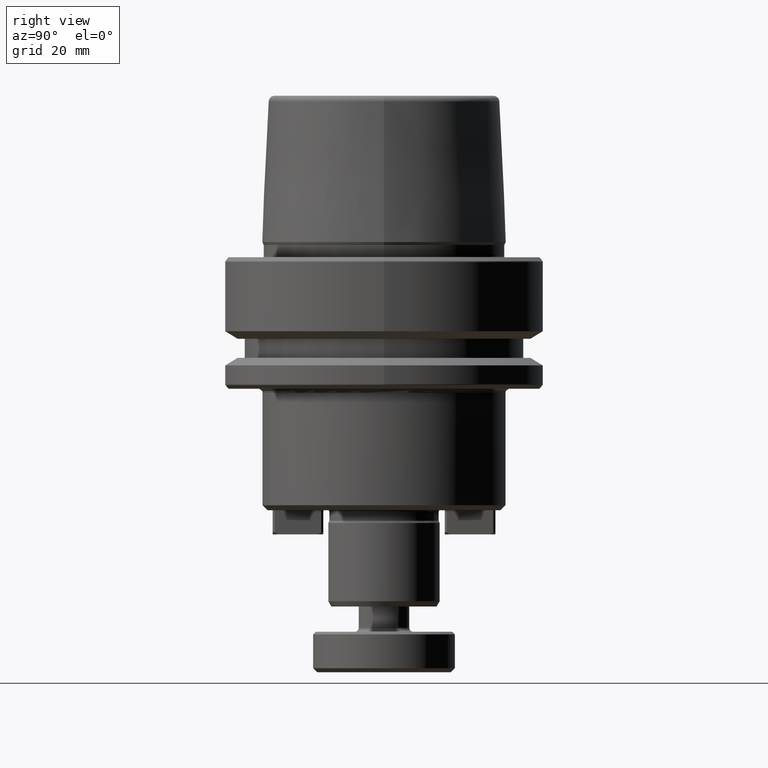
[diagram: clean part render]
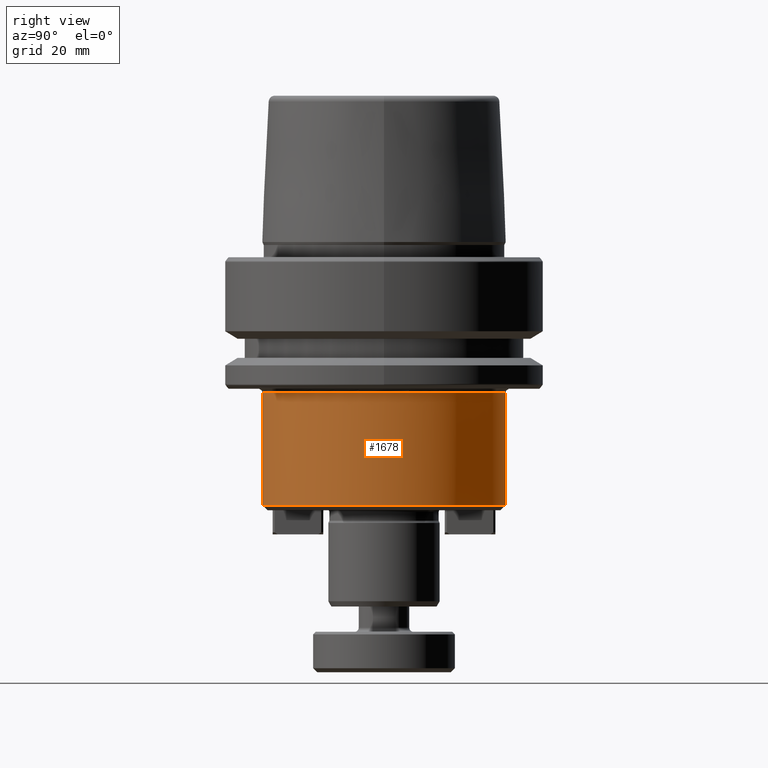
[diagram: same view with one face highlighted and labeled with its STEP entity id]
A machine part, right view. The second image highlights one B-rep face of the part: STEP entity #1678.
In plain terms, the highlighted cylindrical surface (partial cylindrical patch) has radius 24 mm, axis along (-0, 0, -1).
Its self-contained STEP definition (entity closure, byte-faithful):
#57 = DIRECTION ( 'NONE',  ( -0.0000000000000000000, 1.993611068379415200E-017, -1.000000000000000000 ) ) ;
#71 = CYLINDRICAL_SURFACE ( 'NONE', #318, 24.00000000000000000 ) ;
#81 = CIRCLE ( 'NONE', #525, 24.00000000000000000 ) ;
#142 = VERTEX_POINT ( 'NONE', #1748 ) ;
#149 = CARTESIAN_POINT ( 'NONE',  ( 0.0000000000000000000, 24.00000000000000000, -48.99999999999999300 ) ) ;
#232 = CARTESIAN_POINT ( 'NONE',  ( 24.00000000000000000, 1.594888854703520600E-017, -26.80000000000000400 ) ) ;
#261 = LINE ( 'NONE', #1323, #1191 ) ;
#318 = AXIS2_PLACEMENT_3D ( 'NONE', #1800, #649, #1984 ) ;
#372 = CARTESIAN_POINT ( 'NONE',  ( 2.939152317953647900E-015, -24.00000000000000000, -26.80000000000000400 ) ) ;
#525 = AXIS2_PLACEMENT_3D ( 'NONE', #2222, #2197, #2169 ) ;
#649 = DIRECTION ( 'NONE',  ( -0.0000000000000000000, 1.993611068379415200E-017, -1.000000000000000000 ) ) ;
#657 = EDGE_CURVE ( 'NONE', #759, #1524, #768, .T. ) ;
#701 = FACE_OUTER_BOUND ( 'NONE', #1932, .T. ) ;
#710 = DIRECTION ( 'NONE',  ( -0.0000000000000000000, 1.993611068379415200E-017, -1.000000000000000000 ) ) ;
#713 = VERTEX_POINT ( 'NONE', #372 ) ;
#759 = VERTEX_POINT ( 'NONE', #149 ) ;
#768 = CIRCLE ( 'NONE', #1367, 24.00000000000000000 ) ;
#769 = CARTESIAN_POINT ( 'NONE',  ( 0.0000000000000000000, 1.594888854703520600E-017, -26.80000000000000400 ) ) ;
#799 = DIRECTION ( 'NONE',  ( 0.0000000000000000000, 0.0000000000000000000, -1.000000000000000000 ) ) ;
#841 = CARTESIAN_POINT ( 'NONE',  ( 2.939152317953647900E-015, -24.00000000000000000, -48.99999999999999300 ) ) ;
#878 = ORIENTED_EDGE ( 'NONE', *, *, #1939, .T. ) ;
#1168 = CIRCLE ( 'NONE', #2813, 24.00000000000000000 ) ;
#1191 = VECTOR ( 'NONE', #57, 1000.000000000000000 ) ;
#1323 = CARTESIAN_POINT ( 'NONE',  ( 0.0000000000000000000, 24.00000000000000000, -69.00000000000000000 ) ) ;
#1367 = AXIS2_PLACEMENT_3D ( 'NONE', #1454, #2547, #2788 ) ;
#1454 = CARTESIAN_POINT ( 'NONE',  ( 0.0000000000000000000, 4.585305457272651500E-016, -48.99999999999999300 ) ) ;
#1524 = VERTEX_POINT ( 'NONE', #841 ) ;
#1589 = ORIENTED_EDGE ( 'NONE', *, *, #657, .F. ) ;
#1592 = ORIENTED_EDGE ( 'NONE', *, *, #2130, .F. ) ;
#1593 = VECTOR ( 'NONE', #710, 1000.000000000000000 ) ;
#1664 = LINE ( 'NONE', #2686, #1593 ) ;
#1678 = ADVANCED_FACE ( 'NONE', ( #701 ), #71, .T. ) ;
#1733 = VERTEX_POINT ( 'NONE', #232 ) ;
#1748 = CARTESIAN_POINT ( 'NONE',  ( 0.0000000000000000000, 24.00000000000000000, -26.80000000000000400 ) ) ;
#1800 = CARTESIAN_POINT ( 'NONE',  ( 0.0000000000000000000, 8.572527594031484000E-016, -69.00000000000000000 ) ) ;
#1932 = EDGE_LOOP ( 'NONE', ( #878, #2418, #2670, #1589, #1592 ) ) ;
#1939 = EDGE_CURVE ( 'NONE', #142, #1733, #1168, .T. ) ;
#1977 = EDGE_CURVE ( 'NONE', #713, #1524, #1664, .T. ) ;
#1984 = DIRECTION ( 'NONE',  ( 0.0000000000000000000, 1.000000000000000000, 0.0000000000000000000 ) ) ;
#2130 = EDGE_CURVE ( 'NONE', #142, #759, #261, .T. ) ;
#2169 = DIRECTION ( 'NONE',  ( 1.000000000000000000, 0.0000000000000000000, 0.0000000000000000000 ) ) ;
#2197 = DIRECTION ( 'NONE',  ( 0.0000000000000000000, 0.0000000000000000000, -1.000000000000000000 ) ) ;
#2213 = DIRECTION ( 'NONE',  ( 1.000000000000000000, 0.0000000000000000000, 0.0000000000000000000 ) ) ;
#2222 = CARTESIAN_POINT ( 'NONE',  ( 0.0000000000000000000, 1.594888854703520600E-017, -26.80000000000000400 ) ) ;
#2418 = ORIENTED_EDGE ( 'NONE', *, *, #2430, .T. ) ;
#2430 = EDGE_CURVE ( 'NONE', #1733, #713, #81, .T. ) ;
#2547 = DIRECTION ( 'NONE',  ( -0.0000000000000000000, 1.993611068379415200E-017, -1.000000000000000000 ) ) ;
#2670 = ORIENTED_EDGE ( 'NONE', *, *, #1977, .T. ) ;
#2686 = CARTESIAN_POINT ( 'NONE',  ( 2.939152317953647900E-015, -24.00000000000000000, -69.00000000000000000 ) ) ;
#2788 = DIRECTION ( 'NONE',  ( 0.0000000000000000000, 1.000000000000000000, 0.0000000000000000000 ) ) ;
#2813 = AXIS2_PLACEMENT_3D ( 'NONE', #769, #799, #2213 ) ;